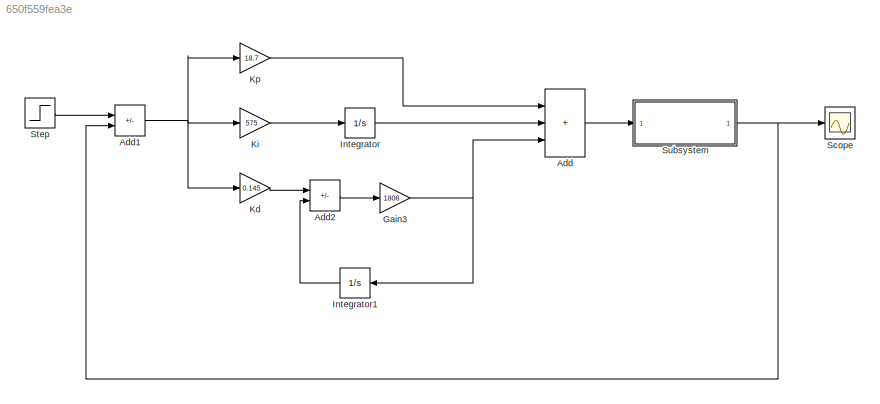
MODEL slx_650f559fea3e
KIND model
CONFIG AbsTol = auto
CONFIG EnableMultiTasking = off
CONFIG FixedStep = auto
CONFIG MaxStep = auto
CONFIG MinStep = auto
CONFIG RelTol = 1e-3
CONFIG SampleTimeConstraint = Unconstrained
CONFIG Solver = ode15s
CONFIG SolverName = ode15s
CONFIG StartTime = 0.0
CONFIG StopTime = 0.2
BLOCK [Sum] Add
  IconShape = rectangular
  Inputs = +++
  Ports = [3, 1]
BLOCK [Sum] Add1
  IconShape = rectangular
  Inputs = +-
  Ports = [2, 1]
BLOCK [Sum] Add2
  IconShape = rectangular
  Inputs = +-
  Ports = [2, 1]
BLOCK [Gain] Gain3
  Gain = 1808
BLOCK [Integrator] Integrator
  Ports = [1, 1]
BLOCK [Integrator] Integrator1
  NameLocation = top
  Ports = [1, 1]
BLOCK [Gain] Kd
  Gain = 0.145
BLOCK [Gain] Ki
  Gain = 575
BLOCK [Gain] Kp
  Gain = 18.7
BLOCK [Scope] Scope
  Floating = off
  NumInputPorts = 1
  Ports = [1]
  ScopeSpecificationString = Simulink.scopes.TimeScopeBlockCfg('CurrentConfiguration', extmgr.ConfigurationSet(extmgr.Configuration('Core','General UI',true),extmgr.Configuration('Core','Source UI',true),extmgr.Configuration('Sources','WiredSimulink',true),extmgr.Configuration('Visuals','Time Domain',true,'SerializedDisplays',{struct('MinYLimReal','-0.15596','MaxYLimReal','1.40365','YLabelReal','','MinYLimMag','0.00000','MaxY...<+1329ch>
BLOCK [Step] Step
  SampleTime = 0
  Time = 0
BLOCK [ModelReference] Subsystem
  ModelNameDialog = Subsystem
  ModelReferenceVersion = 1.3
  Ports = [1, 1]
NET Add1:1 -> Kd:1, Ki:1, Kp:1
LINE Add2:1 -> Gain3:1
LINE Add:1 -> Subsystem:1
NET Gain3:1 -> Add:3, Integrator1:1
LINE Integrator1:1 -> Add2:2
LINE Integrator:1 -> Add:2
LINE Kd:1 -> Add2:1
LINE Ki:1 -> Integrator:1
LINE Kp:1 -> Add:1
LINE Step:1 -> Add1:1
NET Subsystem:1 -> Add1:2, Scope:1
note: NET lines group one-source signal fan-out (src -> all destinations, sorted); 1:1 wires keep LINE
